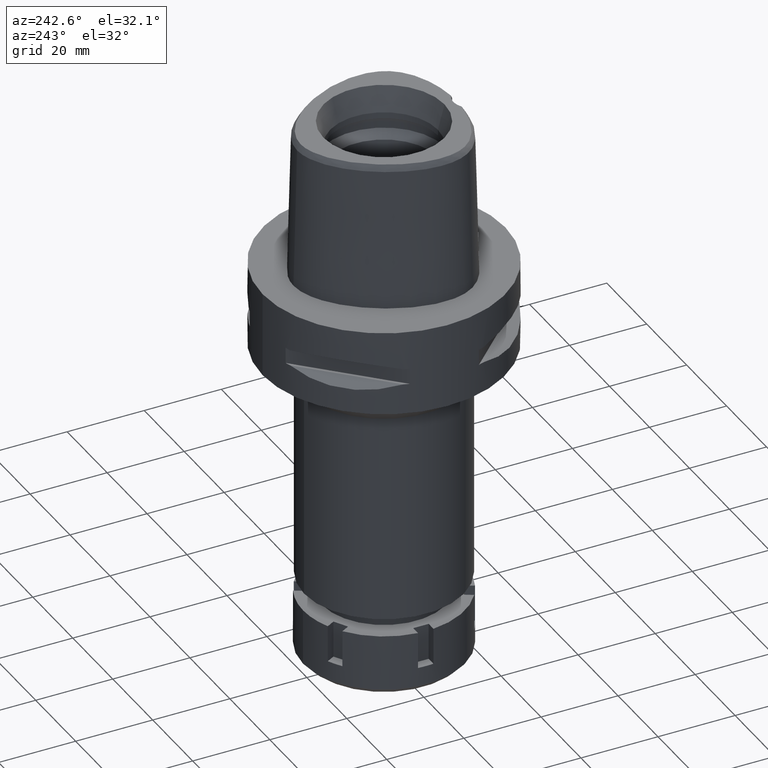
[diagram: clean part render]
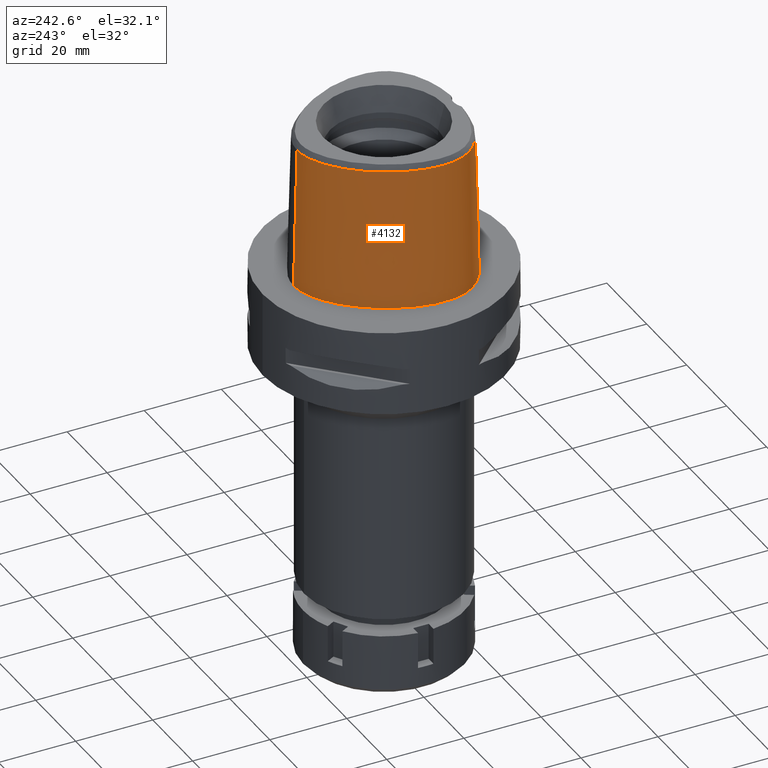
[diagram: same view with one face highlighted and labeled with its STEP entity id]
A machine part, auxiliary view. The second image highlights one B-rep face of the part: STEP entity #4132.
In plain terms, the highlighted face is a freeform B-spline surface patch.
Its self-contained STEP definition (entity closure, byte-faithful):
#2 = CARTESIAN_POINT ( 'NONE',  ( -21.13154902109999966, -6.714587096932000065, 37.25231278910999322 ) ) ;
#7 = CARTESIAN_POINT ( 'NONE',  ( -3.736722311398999796, -19.67781602443999844, 31.80000000000000071 ) ) ;
#26 = CARTESIAN_POINT ( 'NONE',  ( -10.91263714565000065, -18.01320819216000402, 37.25231278910999322 ) ) ;
#32 = CARTESIAN_POINT ( 'NONE',  ( -1.222079501498656962, -20.16967619644332643, 19.36182732690445363 ) ) ;
#38 = CARTESIAN_POINT ( 'NONE',  ( -2.376843896517638388, 22.39422508473669637, 36.52186244847991503 ) ) ;
#65 = CARTESIAN_POINT ( 'NONE',  ( -2.621021505588482015, -20.11233874864636562, 18.58822781674864899 ) ) ;
#87 = CARTESIAN_POINT ( 'NONE',  ( -2.113823673093606637, -20.67500000048518061, -1.936139383583793117E-08 ) ) ;
#97 = CARTESIAN_POINT ( 'NONE',  ( 2.041042029990999821E-08, -19.88004246002000031, 31.80000004972000127 ) ) ;
#138 = CARTESIAN_POINT ( 'NONE',  ( -3.736722311398999796, -19.67781602443999844, 31.80000000000000071 ) ) ;
#173 = CARTESIAN_POINT ( 'NONE',  ( 0.6840430852729000311, -20.68668154552000260, -0.7304375056686999157 ) ) ;
#205 = CARTESIAN_POINT ( 'NONE',  ( 0.6850314194014999192, 22.83959063152000013, 24.59139602417999981 ) ) ;
#213 = CARTESIAN_POINT ( 'NONE',  ( -4.049848995936174312, -20.05861656952050609, 15.25314035234744559 ) ) ;
#234 = VERTEX_POINT ( 'NONE', #941 ) ;
#238 = CARTESIAN_POINT ( 'NONE',  ( -10.14358084831000006, 18.45723428719999859, 37.25231278910999322 ) ) ;
#252 = CARTESIAN_POINT ( 'NONE',  ( -4.027530768679776330, -20.06783249596159635, 14.99855479655600732 ) ) ;
#267 = B_SPLINE_SURFACE_WITH_KNOTS ( 'NONE', 3, 3, ( 
 ( #738, #5446, #205, #764 ),
 ( #1217, #301, #5027, #1618 ),
 ( #4976, #3338, #2910, #4621 ),
 ( #4153, #1951, #4528, #4202 ),
 ( #2071, #3793, #672, #5478 ),
 ( #1646, #5392, #4122, #271 ),
 ( #1135, #2936, #645, #238 ),
 ( #2852, #2015, #2965, #4338 ),
 ( #2097, #2599, #3017, #407 ),
 ( #4679, #1772, #2519, #5522 ),
 ( #5153, #3839, #3872, #2178 ),
 ( #3447, #5131, #1723, #3816 ),
 ( #4315, #792, #5499, #2 ),
 ( #1301, #840, #2149, #443 ),
 ( #3045, #1698, #3505, #3894 ),
 ( #1748, #1248, #2572, #2993 ),
 ( #5553, #3473, #3421, #465 ),
 ( #4723, #864, #1670, #1324 ),
 ( #3387, #820, #3917, #5108 ),
 ( #1278, #4752, #4700, #898 ),
 ( #4259, #5077, #4283, #26 ),
 ( #2628, #2202, #5186, #1355 ),
 ( #4235, #2547, #382, #4647 ),
 ( #357, #2121, #947, #2285 ),
 ( #173, #3534, #2226, #1805 ) ),
 .UNSPECIFIED., .F., .F., .F.,
 ( 4, 1, 1, 1, 1, 1, 1, 1, 1, 1, 1, 1, 1, 1, 1, 1, 1, 1, 1, 1, 1, 1, 4 ),
 ( 4, 4 ),
 ( -0.01173777939052000029, 0.0000000000000000000, 0.04166666666751999565, 0.08333333333413001087, 0.1250000000007999990, 0.1666666666674000152, 0.2500000000006000200, 0.3333333333337999971, 0.4166666666671000052, 0.5000000000002999823, 0.5416666666670000296, 0.5833333333335000148, 0.6250000000001999512, 0.6458333333335000148, 0.6666666666667999674, 0.6875000000001000311, 0.7083333333333999837, 0.7500000000000000000, 0.7916666666667000474, 0.8333333333333000637, 0.9166666666666000163, 1.000000000000000000, 1.008985696609000060 ),
 ( 5.972674056720000678E-09, 0.9999996953936000077 ),
 .UNSPECIFIED. ) ;
#271 = CARTESIAN_POINT ( 'NONE',  ( -7.099337850620999646, 20.50831403385999607, 37.25231278910999322 ) ) ;
#282 = CARTESIAN_POINT ( 'NONE',  ( -3.089131642920630583, -20.21685897408095656, 12.88004451868196654 ) ) ;
#301 = CARTESIAN_POINT ( 'NONE',  ( 0.4696382076131000449, 23.16972812732999643, 11.93047925926000197 ) ) ;
#309 = CARTESIAN_POINT ( 'NONE',  ( -4.044848056823780347, -20.04744994059091923, 15.72117637690715064 ) ) ;
#341 = CARTESIAN_POINT ( 'NONE',  ( -2.875757950340810609, -20.24102512592879677, 12.64823125461289521 ) ) ;
#357 = CARTESIAN_POINT ( 'NONE',  ( 0.4560943669547999901, -20.69106768045000067, -0.7304375056686999157 ) ) ;
#382 = CARTESIAN_POINT ( 'NONE',  ( -1.853278699713999833, -20.08023939994999907, 24.59139602417999981 ) ) ;
#392 = CARTESIAN_POINT ( 'NONE',  ( -13.70645028111170305, 15.04851272300122567, 36.52186244847991503 ) ) ;
#406 = EDGE_LOOP ( 'NONE', ( #1982, #4069, #1013, #3016, #3652, #2192, #5477, #4634 ) ) ;
#407 = CARTESIAN_POINT ( 'NONE',  ( -17.25769868493999937, 9.963736632712999253, 37.25231278910999322 ) ) ;
#424 = CARTESIAN_POINT ( 'NONE',  ( -7.300578999875143360, -19.07170748891650547, 36.52186244847991503 ) ) ;
#443 = CARTESIAN_POINT ( 'NONE',  ( -20.65947771417999945, -8.729764421392999907, 37.25231278910999322 ) ) ;
#455 = CARTESIAN_POINT ( 'NONE',  ( -14.22011356156078854, -16.41829364185893070, 36.52186244847991503 ) ) ;
#465 = CARTESIAN_POINT ( 'NONE',  ( -18.89485296927999869, -12.27684387216999973, 37.25231278910999322 ) ) ;
#469 = CARTESIAN_POINT ( 'NONE',  ( -0.2473412322782437278, -20.18628283969000492, 19.54999999999999716 ) ) ;
#494 = CARTESIAN_POINT ( 'NONE',  ( -2.857836109606429087, -20.09902107152586126, 18.36973246307253049 ) ) ;
#529 = CARTESIAN_POINT ( 'NONE',  ( -1.300728010709000004E-12, -20.38876923348000147, 11.44999999999999929 ) ) ;
#574 = CARTESIAN_POINT ( 'NONE',  ( -22.24453907903185268, -4.100468749996733386, -1.936139383583793117E-08 ) ) ;
#645 = CARTESIAN_POINT ( 'NONE',  ( -10.34823247731999984, 18.70095510951999884, 24.59139602417999981 ) ) ;
#653 = CARTESIAN_POINT ( 'NONE',  ( -3.740129524201757150, -20.04822853724978060, 17.05370687140962005 ) ) ;
#660 = LINE ( 'NONE', #2366, #2949 ) ;
#664 = CARTESIAN_POINT ( 'NONE',  ( 6.820000355845149511E-09, -19.98212988583490457, 27.71666688228263098 ) ) ;
#672 = CARTESIAN_POINT ( 'NONE',  ( -4.868968478290000235, 21.95285551758000153, 24.59139602417999981 ) ) ;
#682 = CARTESIAN_POINT ( 'NONE',  ( -4.001055636210810285, -20.04208398455349993, 16.14154222857778009 ) ) ;
#721 = CARTESIAN_POINT ( 'NONE',  ( -3.623054736480678883, -20.05423874947347684, 17.31100359227538732 ) ) ;
#738 = CARTESIAN_POINT ( 'NONE',  ( 0.7234356448575000043, 23.47140592234999801, -0.7304375056686999157 ) ) ;
#749 = CARTESIAN_POINT ( 'NONE',  ( -3.215358272887883562, -20.20174660046962245, 13.03391498473813748 ) ) ;
#764 = CARTESIAN_POINT ( 'NONE',  ( 0.6658293066735000432, 22.52368298609999897, 37.25231278910999322 ) ) ;
#774 = CARTESIAN_POINT ( 'NONE',  ( -2.904838724128467664, -20.23782704190360704, 12.67778573503113471 ) ) ;
#792 = CARTESIAN_POINT ( 'NONE',  ( -21.76083719822999996, -6.805026055553000219, 11.93047925926000197 ) ) ;
#815 = LINE ( 'NONE', #4276, #5357 ) ;
#820 = CARTESIAN_POINT ( 'NONE',  ( -16.77374387901999953, -15.44292479314999866, 11.93047925926000197 ) ) ;
#824 = CARTESIAN_POINT ( 'NONE',  ( -2.187955111052514390, -20.13397228737158429, 18.90818030783675852 ) ) ;
#838 = EDGE_CURVE ( 'NONE', #4763, #1926, #1548, .T. ) ;
#840 = CARTESIAN_POINT ( 'NONE',  ( -21.26836749701999807, -8.910752269759999677, 11.93047925926000197 ) ) ;
#853 = B_SPLINE_CURVE_WITH_KNOTS ( 'NONE', 3,
 ( #3578, #1400, #424, #3519, #455, #4710, #1367, #1760, #5117, #4658, #4327, #5200, #3849, #5537, #880, #3032, #392, #4245, #4690, #2190, #38, #5565, #3486 ),
 .UNSPECIFIED., .F., .F.,
 ( 4, 1, 1, 1, 1, 1, 1, 1, 1, 1, 1, 1, 1, 1, 1, 1, 1, 1, 1, 1, 4 ),
 ( 0.0000000000000000000, 0.03580973941716368569, 0.1234633994701200693, 0.1672902294965457060, 0.2111170595230765779, 0.2549438895495022006, 0.2768573045627149565, 0.2987707195759278234, 0.3206841345891406347, 0.3425975496023535016, 0.3864243796288842070, 0.4302512096552046361, 0.4740780396817355080, 0.5617316997345866980, 0.6493853597875431927, 0.7370390198403943272, 0.8246926798932455727, 0.8685195099196713064, 0.9123463399461704260, 0.9561731699726067069, 1.000000000000000000 ),
 .UNSPECIFIED. ) ;
#861 = CARTESIAN_POINT ( 'NONE',  ( -5.098437017463878007, 22.52602539107704516, -1.936139383583793117E-08 ) ) ;
#864 = CARTESIAN_POINT ( 'NONE',  ( -18.35112160044999996, -13.96357041449000036, 11.93047925926000197 ) ) ;
#875 = CARTESIAN_POINT ( 'NONE',  ( -2.503154198992878499, -19.81241979315927182, 31.80000012753022531 ) ) ;
#880 = CARTESIAN_POINT ( 'NONE',  ( -19.88562090098679747, 4.345879983791757439, 36.52186244847991503 ) ) ;
#898 = CARTESIAN_POINT ( 'NONE',  ( -14.21104807742999832, -16.40237719817999817, 37.25231278910999322 ) ) ;
#904 = CARTESIAN_POINT ( 'NONE',  ( 0.0000000000000000000, -20.18628283968999781, 19.55000000000000071 ) ) ;
#928 = CARTESIAN_POINT ( 'NONE',  ( -2.781497320434850540, -20.10345565782016308, 18.44409576488488867 ) ) ;
#941 = CARTESIAN_POINT ( 'NONE',  ( -1.605369804321000336E-11, 22.56201468012000078, 36.52186680743999858 ) ) ;
#947 = CARTESIAN_POINT ( 'NONE',  ( 0.4479792512575000440, -20.05810167422999868, 24.59139602417999981 ) ) ;
#979 = CARTESIAN_POINT ( 'NONE',  ( -21.55524826055441778, -8.996025390764080143, -1.936139383583793117E-08 ) ) ;
#1012 = CARTESIAN_POINT ( 'NONE',  ( -22.05732874370039198, -6.847636718819056334, -1.936139383583793117E-08 ) ) ;
#1013 = ORIENTED_EDGE ( 'NONE', *, *, #838, .F. ) ;
#1090 = B_SPLINE_CURVE_WITH_KNOTS ( 'NONE', 3,
 ( #1282, #4343, #5192, #7 ),
 .UNSPECIFIED., .F., .F.,
 ( 4, 4 ),
 ( 0.0000000000000000000, 1.000000000000000000 ),
 .UNSPECIFIED. ) ;
#1113 = CARTESIAN_POINT ( 'NONE',  ( -3.294464282139042854, -20.19175818983875814, 13.14063372506621796 ) ) ;
#1135 = CARTESIAN_POINT ( 'NONE',  ( -10.75753573533999941, 19.18839675417000024, -0.7304375056686999157 ) ) ;
#1143 = CARTESIAN_POINT ( 'NONE',  ( -0.5047993661875627147, -20.38876923348000503, 11.44999999999999929 ) ) ;
#1176 = CARTESIAN_POINT ( 'NONE',  ( -4.038031914720374260, -20.04584209172325160, 15.81781984753357762 ) ) ;
#1202 = CARTESIAN_POINT ( 'NONE',  ( -3.698122373792616546, -20.13343971463959647, 13.84482020408002789 ) ) ;
#1217 = CARTESIAN_POINT ( 'NONE',  ( 0.4823619555731999964, 23.48603817779999758, -0.7304375056686999157 ) ) ;
#1227 = CARTESIAN_POINT ( 'NONE',  ( -1.678454493248099144, -20.33967188086277744, 11.81405957882488345 ) ) ;
#1248 = CARTESIAN_POINT ( 'NONE',  ( -20.09084480770000170, -11.59945465740000081, 11.93047925926000197 ) ) ;
#1257 = CARTESIAN_POINT ( 'NONE',  ( -3.736722311398999796, -19.67781602443999844, 31.80000000000000071 ) ) ;
#1278 = CARTESIAN_POINT ( 'NONE',  ( -14.68244496903000140, -17.23001772651000252, -0.7304375056686999157 ) ) ;
#1282 = CARTESIAN_POINT ( 'NONE',  ( -3.637738201363999835, -19.56971413236999879, 36.52186244848000030 ) ) ;
#1301 = CARTESIAN_POINT ( 'NONE',  ( -21.57281238843999915, -9.001246193943998719, -0.7304375056686999157 ) ) ;
#1324 = CARTESIAN_POINT ( 'NONE',  ( -17.88993667591999781, -13.52675031845000042, 37.25231278910999322 ) ) ;
#1355 = CARTESIAN_POINT ( 'NONE',  ( -6.175998626873999697, -19.37631808655999777, 37.25231278910999322 ) ) ;
#1360 = CARTESIAN_POINT ( 'NONE',  ( -1.025211814385354803, -20.17465818941732891, 19.42048404905330372 ) ) ;
#1367 = CARTESIAN_POINT ( 'NONE',  ( -17.90324032096656026, -13.53935111955590287, 36.52186244847991503 ) ) ;
#1386 = CARTESIAN_POINT ( 'NONE',  ( -3.258446753581197175, -20.07522384658359016, 17.91983021284886846 ) ) ;
#1400 = CARTESIAN_POINT ( 'NONE',  ( -4.467522189394514065, -19.48130287050325649, 36.52186244847991503 ) ) ;
#1406 = CARTESIAN_POINT ( 'NONE',  ( -6.341471019297461709, -20.29812500048721091, -1.936139383583793117E-08 ) ) ;
#1491 = DIRECTION ( 'NONE',  ( 1.954414784638959457E-12, 0.02499051290953949525, -0.9996876883629797206 ) ) ;
#1543 = CARTESIAN_POINT ( 'NONE',  ( -3.377353639916687911, -20.18061854612784245, 13.26476903757044568 ) ) ;
#1548 = B_SPLINE_CURVE_WITH_KNOTS ( 'NONE', 3,
 ( #4522, #664, #3705, #3647 ),
 .UNSPECIFIED., .F., .F.,
 ( 4, 4 ),
 ( 0.0000000000000000000, 1.000000000000000000 ),
 .UNSPECIFIED. ) ;
#1561 = VERTEX_POINT ( 'NONE', #138 ) ;
#1571 = CARTESIAN_POINT ( 'NONE',  ( -2.421503357379948262, -20.28648737493531939, 12.24279215500327389 ) ) ;
#1598 = CARTESIAN_POINT ( 'NONE',  ( -1.559921522258002735, -20.34641501698342836, 11.76246137009469805 ) ) ;
#1618 = CARTESIAN_POINT ( 'NONE',  ( 0.4441907116927999999, 22.53710802640000210, 37.25231278910999322 ) ) ;
#1631 = CARTESIAN_POINT ( 'NONE',  ( -3.755562140673627702, -20.12374194796139193, 13.98397501487714223 ) ) ;
#1646 = CARTESIAN_POINT ( 'NONE',  ( -7.580410837954000947, 21.33037925914000255, -0.7304375056686999157 ) ) ;
#1656 = CARTESIAN_POINT ( 'NONE',  ( -3.408875187705913135, -20.17633333109255744, 13.31312751153962637 ) ) ;
#1670 = CARTESIAN_POINT ( 'NONE',  ( -18.12052913818000022, -13.74516036646999950, 24.59139602417999981 ) ) ;
#1698 = CARTESIAN_POINT ( 'NONE',  ( -20.65879055685999788, -10.48283622748999910, 11.93047925926000197 ) ) ;
#1721 = CARTESIAN_POINT ( 'NONE',  ( 5.534747782599000141E-11, 23.47499999999000053, 1.254922092168000080E-13 ) ) ;
#1723 = CARTESIAN_POINT ( 'NONE',  ( -21.62788416859000407, -4.104079497494000250, 24.59139602417999981 ) ) ;
#1729 = CARTESIAN_POINT ( 'NONE',  ( -1.533377486156251024, -20.16026360294686981, 19.24851053760685105 ) ) ;
#1744 = CARTESIAN_POINT ( 'NONE',  ( -7.571159434596632209, 21.31457031291904158, -1.936139383583793117E-08 ) ) ;
#1748 = CARTESIAN_POINT ( 'NONE',  ( -20.36546124135999847, -11.75800452989999911, -0.7304375056686999157 ) ) ;
#1760 = CARTESIAN_POINT ( 'NONE',  ( -18.90964971338283007, -12.28759719904299530, 36.52186244847991503 ) ) ;
#1772 = CARTESIAN_POINT ( 'NONE',  ( -20.46725051708000009, 4.555493675633999651, 11.93047925926000197 ) ) ;
#1779 = CARTESIAN_POINT ( 'NONE',  ( -1.435263460293925819, -20.16346600381253040, 19.28743623777244309 ) ) ;
#1794 = CARTESIAN_POINT ( 'NONE',  ( 0.0000000000000000000, -20.18628283968999781, 19.55000000000000071 ) ) ;
#1805 = CARTESIAN_POINT ( 'NONE',  ( 0.6657744364777999913, -19.73734279609000097, 37.25231278910999322 ) ) ;
#1810 = CARTESIAN_POINT ( 'NONE',  ( -2.841055161952164010, -20.10000556631501567, 18.38634273630945870 ) ) ;
#1926 = VERTEX_POINT ( 'NONE', #1794 ) ;
#1951 = CARTESIAN_POINT ( 'NONE',  ( -2.503210920796000050, 22.99958946613999800, 11.93047925926000197 ) ) ;
#1963 = CARTESIAN_POINT ( 'NONE',  ( -3.830499027160743086, -20.11062698623123524, 14.18153512545000794 ) ) ;
#1982 = ORIENTED_EDGE ( 'NONE', *, *, #4328, .F. ) ;
#1997 = CARTESIAN_POINT ( 'NONE',  ( -3.686560471764692259, -20.05088322548417068, 17.17709135335520898 ) ) ;
#2006 = EDGE_CURVE ( 'NONE', #2045, #234, #853, .T. ) ;
#2015 = CARTESIAN_POINT ( 'NONE',  ( -14.17879764695000055, 15.44741200484000032, 11.93047925926000197 ) ) ;
#2045 = VERTEX_POINT ( 'NONE', #3431 ) ;
#2050 = CARTESIAN_POINT ( 'NONE',  ( -3.862607746693165200, -20.10460055501438248, 14.28038032243066624 ) ) ;
#2071 = CARTESIAN_POINT ( 'NONE',  ( -5.105252914480999493, 22.54305023834000110, -0.7304375056686999157 ) ) ;
#2083 = CARTESIAN_POINT ( 'NONE',  ( -2.870809693610187452, -20.24156730632852330, 12.64324605246986089 ) ) ;
#2097 = CARTESIAN_POINT ( 'NONE',  ( -18.08416037938999921, 10.44089486994999838, -0.7304375056686999157 ) ) ;
#2103 = CARTESIAN_POINT ( 'NONE',  ( -1.944872162933173332, -20.14473830020670775, 19.05307826098763613 ) ) ;
#2121 = CARTESIAN_POINT ( 'NONE',  ( 0.4520368091062000326, -20.37458467733999967, 11.93047925926000197 ) ) ;
#2149 = CARTESIAN_POINT ( 'NONE',  ( -20.96392260560000054, -8.820258345577000725, 24.59139602417999981 ) ) ;
#2157 = CARTESIAN_POINT ( 'NONE',  ( -0.8941136475798193706, -20.17742596329177118, 19.45229334933474163 ) ) ;
#2178 = CARTESIAN_POINT ( 'NONE',  ( -21.05621925524999938, -0.4440251336689999828, 37.25231278910999322 ) ) ;
#2190 = CARTESIAN_POINT ( 'NONE',  ( -4.757642277159060740, 21.67478330407760723, 36.52186244847991503 ) ) ;
#2192 = ORIENTED_EDGE ( 'NONE', *, *, #2006, .T. ) ;
#2202 = CARTESIAN_POINT ( 'NONE',  ( -6.288476592908000207, -20.00290579243000266, 11.93047925926000197 ) ) ;
#2222 = CARTESIAN_POINT ( 'NONE',  ( -18.06826688568742867, 10.43171875024612305, -1.936139383583793117E-08 ) ) ;
#2226 = CARTESIAN_POINT ( 'NONE',  ( 0.6718639860762000149, -20.05378904589999678, 24.59139602417999981 ) ) ;
#2232 = CARTESIAN_POINT ( 'NONE',  ( -2.823299992937056135, -20.10104229143709276, 18.40378355436299529 ) ) ;
#2255 = CARTESIAN_POINT ( 'NONE',  ( -11.23259756743898841, -18.89324218796141963, -1.936139383583793117E-08 ) ) ;
#2283 = CARTESIAN_POINT ( 'NONE',  ( -20.93173252255640193, -10.60431640645195017, -1.936139383583793117E-08 ) ) ;
#2285 = CARTESIAN_POINT ( 'NONE',  ( 0.4439216934087999999, -19.74161867111999769, 37.25231278910999322 ) ) ;
#2308 = CARTESIAN_POINT ( 'NONE',  ( -19.64947365902738596, -12.82525390653195352, -1.936139383583793117E-08 ) ) ;
#2361 = B_SPLINE_CURVE_WITH_KNOTS ( 'NONE', 3,
 ( #2609, #4323, #875, #1257 ),
 .UNSPECIFIED., .F., .F.,
 ( 4, 4 ),
 ( 0.0000000000000000000, 1.000000000000000000 ),
 .UNSPECIFIED. ) ;
#2366 = CARTESIAN_POINT ( 'NONE',  ( -1.605369804321000336E-11, 22.56201468012000078, 36.52186680743999858 ) ) ;
#2384 = CARTESIAN_POINT ( 'NONE',  ( -3.925407708630975545, -20.04099055260221363, 16.53138977182821634 ) ) ;
#2413 = CARTESIAN_POINT ( 'NONE',  ( -4.019649019913003940, -20.04316019033985086, 16.01163126943011861 ) ) ;
#2446 = CARTESIAN_POINT ( 'NONE',  ( -3.649474620159721017, -20.05281468735726591, 17.25706831817002396 ) ) ;
#2470 = CARTESIAN_POINT ( 'NONE',  ( -3.704467467890589560, -20.04996865237293591, 17.13733399074684272 ) ) ;
#2495 = CARTESIAN_POINT ( 'NONE',  ( -2.945118222696918142, -20.23335776654030127, 12.71958560101020730 ) ) ;
#2519 = CARTESIAN_POINT ( 'NONE',  ( -20.16779748912999892, 4.447573698754999860, 24.59139602417999981 ) ) ;
#2526 = CARTESIAN_POINT ( 'NONE',  ( -1.320565687276267441, -20.16697761691573376, 19.32976498245970376 ) ) ;
#2547 = CARTESIAN_POINT ( 'NONE',  ( -1.870070495857000026, -20.39691399736000221, 11.93047925926000197 ) ) ;
#2552 = CARTESIAN_POINT ( 'NONE',  ( -2.218923952810184286, -20.13252298611807234, 18.88809933005989095 ) ) ;
#2572 = CARTESIAN_POINT ( 'NONE',  ( -19.81622837404000137, -11.44090478490000073, 24.59139602417999981 ) ) ;
#2599 = CARTESIAN_POINT ( 'NONE',  ( -17.80867314790999956, 10.28184212420000065, 11.93047925926000197 ) ) ;
#2609 = CARTESIAN_POINT ( 'NONE',  ( 2.041042029990999821E-08, -19.88004246002000031, 31.80000004972000127 ) ) ;
#2628 = CARTESIAN_POINT ( 'NONE',  ( -6.344715575923999928, -20.31619964537000200, -0.7304375056686999157 ) ) ;
#2656 = CARTESIAN_POINT ( 'NONE',  ( -2.467128207655710614, -20.12044499745019266, 18.71456023906526056 ) ) ;
#2708 = CARTESIAN_POINT ( 'NONE',  ( -20.34961798599187688, -11.74885742211361617, -1.936139383583793117E-08 ) ) ;
#2768 = EDGE_CURVE ( 'NONE', #4683, #4919, #5450, .T. ) ;
#2834 = CARTESIAN_POINT ( 'NONE',  ( -1.572984596531428858, -20.34569619827913201, 11.76794029727377122 ) ) ;
#2852 = CARTESIAN_POINT ( 'NONE',  ( -14.42198651668000053, 15.65278599970000251, -0.7304375056686999157 ) ) ;
#2863 = CARTESIAN_POINT ( 'NONE',  ( -1.300728010709000004E-12, -20.38876923348000147, 11.44999999999999929 ) ) ;
#2895 = EDGE_CURVE ( 'NONE', #234, #4683, #660, .T. ) ;
#2896 = CARTESIAN_POINT ( 'NONE',  ( -3.388781880796850388, -20.17907268769689111, 13.28211842279059951 ) ) ;
#2910 = CARTESIAN_POINT ( 'NONE',  ( -0.5821289319889000335, 22.88453105387999997, 24.59139602417999981 ) ) ;
#2920 = CARTESIAN_POINT ( 'NONE',  ( -3.438474044887640968, -20.17226853620277538, 13.35950353148250436 ) ) ;
#2936 = CARTESIAN_POINT ( 'NONE',  ( -10.55288410633000140, 18.94467593184999998, 11.93047925926000197 ) ) ;
#2946 = CARTESIAN_POINT ( 'NONE',  ( -3.538328569005044333, -20.05892019842456264, 17.47427695038981810 ) ) ;
#2949 = VECTOR ( 'NONE', #1491, 1000.000000000000227 ) ;
#2965 = CARTESIAN_POINT ( 'NONE',  ( -13.93560877720999969, 15.24203800997000080, 24.59139602417999981 ) ) ;
#2971 = CARTESIAN_POINT ( 'NONE',  ( -2.141634863663407717, -20.13611892945429105, 18.93776449056396416 ) ) ;
#2993 = CARTESIAN_POINT ( 'NONE',  ( -19.54161194038000104, -11.28235491240999977, 37.25231278910999322 ) ) ;
#3015 = CARTESIAN_POINT ( 'NONE',  ( -0.8548392423348609714, 23.47500000048928825, -1.936139383583792786E-08 ) ) ;
#3016 = ORIENTED_EDGE ( 'NONE', *, *, #3785, .T. ) ;
#3017 = CARTESIAN_POINT ( 'NONE',  ( -17.53318591641999902, 10.12278937846000026, 24.59139602417999981 ) ) ;
#3032 = CARTESIAN_POINT ( 'NONE',  ( -17.27359245833809354, 9.972912913899113718, 36.52186244847991503 ) ) ;
#3045 = CARTESIAN_POINT ( 'NONE',  ( -20.94844325468000079, -10.61175396821999861, -0.7304375056686999157 ) ) ;
#3108 = CARTESIAN_POINT ( 'NONE',  ( -2.696415149899702879, -20.10825975497923679, 18.52316981035092169 ) ) ;
#3144 = CARTESIAN_POINT ( 'NONE',  ( -1.042620445671000137E-11, -20.67499999999999716, 1.284898113832999718E-13 ) ) ;
#3265 = CARTESIAN_POINT ( 'NONE',  ( -1.638635025836901349, -20.34200884320553371, 11.79610711465294237 ) ) ;
#3270 = EDGE_CURVE ( 'NONE', #2045, #1561, #1090, .T. ) ;
#3289 = CARTESIAN_POINT ( 'NONE',  ( -1.554881956804979204, -20.34669101430225524, 11.76035872671680060 ) ) ;
#3318 = CARTESIAN_POINT ( 'NONE',  ( -1.592612062464957123, -20.34460894491118310, 11.77623291199202349 ) ) ;
#3338 = CARTESIAN_POINT ( 'NONE',  ( -0.5985508222284999791, 23.20171284941000067, 11.93047925926000197 ) ) ;
#3348 = CARTESIAN_POINT ( 'NONE',  ( -3.952964639637182476, -20.08622609015915472, 14.60890045227376532 ) ) ;
#3373 = CARTESIAN_POINT ( 'NONE',  ( -1.812541018710777552, -20.33144879143533501, 11.87771303032907255 ) ) ;
#3387 = CARTESIAN_POINT ( 'NONE',  ( -16.97022730840000193, -15.69280482770999896, -0.7304375056686999157 ) ) ;
#3394 = EDGE_CURVE ( 'NONE', #1926, #5230, #4371, .T. ) ;
#3421 = CARTESIAN_POINT ( 'NONE',  ( -19.15132536042999689, -12.46323159617000087, 24.59139602417999981 ) ) ;
#3431 = CARTESIAN_POINT ( 'NONE',  ( -3.637738201363999835, -19.56971413236999879, 36.52186244848000030 ) ) ;
#3447 = CARTESIAN_POINT ( 'NONE',  ( -22.26285556102000385, -4.100361500073999466, -0.7304375056686999157 ) ) ;
#3452 = CARTESIAN_POINT ( 'NONE',  ( -1.656252726929893671, -20.15609978928699064, 19.19765142506413014 ) ) ;
#3473 = CARTESIAN_POINT ( 'NONE',  ( -19.40779775158999954, -12.64961932016999846, 11.93047925926000197 ) ) ;
#3486 = CARTESIAN_POINT ( 'NONE',  ( -1.605369804321000336E-11, 22.56201468012000078, 36.52186680743999858 ) ) ;
#3505 = CARTESIAN_POINT ( 'NONE',  ( -20.36913785902999763, -10.35391848676000137, 24.59139602417999981 ) ) ;
#3512 = CARTESIAN_POINT ( 'NONE',  ( -1.543048130381289074, -20.15993798682084659, 19.24453660913574282 ) ) ;
#3519 = CARTESIAN_POINT ( 'NONE',  ( -10.91891098964689100, -18.03046406390404854, 36.52186244847991503 ) ) ;
#3534 = CARTESIAN_POINT ( 'NONE',  ( 0.6779535356746000385, -20.37023529570999969, 11.93047925926000197 ) ) ;
#3540 = CARTESIAN_POINT ( 'NONE',  ( -2.360389010911050800, -20.12578017861218882, 18.79373387522195316 ) ) ;
#3558 = CARTESIAN_POINT ( 'NONE',  ( -1.042620445671000137E-11, -20.67499999999999716, 1.284898113832999718E-13 ) ) ;
#3578 = CARTESIAN_POINT ( 'NONE',  ( -3.637738201363999835, -19.56971413236999879, 36.52186244848000030 ) ) ;
#3618 = CARTESIAN_POINT ( 'NONE',  ( -14.67337964443183296, -17.21410156292554561, -1.936139383583793117E-08 ) ) ;
#3647 = CARTESIAN_POINT ( 'NONE',  ( 0.0000000000000000000, -20.18628283968999781, 19.55000000000000071 ) ) ;
#3652 = ORIENTED_EDGE ( 'NONE', *, *, #3270, .F. ) ;
#3690 = CARTESIAN_POINT ( 'NONE',  ( -3.748882549353983240, -20.12487725615872236, 13.96753193210200727 ) ) ;
#3705 = CARTESIAN_POINT ( 'NONE',  ( 6.839970278757620539E-09, -20.08420636276298055, 23.63333344114143486 ) ) ;
#3719 = CARTESIAN_POINT ( 'NONE',  ( -3.553766164806683392, -20.15576042543187540, 13.55638603583821222 ) ) ;
#3744 = CARTESIAN_POINT ( 'NONE',  ( -1.758544761671194445, -20.33485355119340809, 11.85123508312359064 ) ) ;
#3770 = CARTESIAN_POINT ( 'NONE',  ( -3.788010122578853611, -20.11815763408451474, 14.06624340821270103 ) ) ;
#3785 = EDGE_CURVE ( 'NONE', #4763, #1561, #2361, .T. ) ;
#3793 = CARTESIAN_POINT ( 'NONE',  ( -4.987110696386000797, 22.24795287795999954, 11.93047925926000197 ) ) ;
#3805 = CARTESIAN_POINT ( 'NONE',  ( -2.647727988100973207, -20.26593689667726750, 12.42012271607942786 ) ) ;
#3816 = CARTESIAN_POINT ( 'NONE',  ( -21.31039847237000018, -4.105938496203999755, 37.25231278910999322 ) ) ;
#3822 = CARTESIAN_POINT ( 'NONE',  ( -2.004675599390202567, -20.14220382833396883, 19.01976680093374839 ) ) ;
#3839 = CARTESIAN_POINT ( 'NONE',  ( -21.68301109284999839, -0.3332743892142999709, 11.93047925926000197 ) ) ;
#3849 = CARTESIAN_POINT ( 'NONE',  ( -21.32871527669426825, -4.105831244393869817, 36.52186244847991503 ) ) ;
#3872 = CARTESIAN_POINT ( 'NONE',  ( -21.36961517405000066, -0.3886497614416000168, 24.59139602417999981 ) ) ;
#3894 = CARTESIAN_POINT ( 'NONE',  ( -20.07948516121000182, -10.22500074603000009, 37.25231278910999322 ) ) ;
#3917 = CARTESIAN_POINT ( 'NONE',  ( -16.57726044965000156, -15.19304475859000014, 24.59139602417999981 ) ) ;
#3923 = CARTESIAN_POINT ( 'NONE',  ( -0.5036866637249096668, -20.18406862059043760, 19.52728785669985001 ) ) ;
#3951 = CARTESIAN_POINT ( 'NONE',  ( -3.081149392577405166, -20.08583124627778105, 18.14629112890300533 ) ) ;
#3956 = CARTESIAN_POINT ( 'NONE',  ( 5.534747782599000141E-11, 23.47499999999000053, 1.254922092168000080E-13 ) ) ;
#3972 = CARTESIAN_POINT ( 'NONE',  ( -10.74572891090238436, 19.17433593787038859, -1.936139383583793117E-08 ) ) ;
#4024 = CARTESIAN_POINT ( 'NONE',  ( -16.95889172623624930, -15.67838867225212418, -1.936139383583793117E-08 ) ) ;
#4069 = ORIENTED_EDGE ( 'NONE', *, *, #3394, .F. ) ;
#4100 = CARTESIAN_POINT ( 'NONE',  ( -4.050018014422889223, -20.05167593067619691, 15.52805627100407371 ) ) ;
#4122 = CARTESIAN_POINT ( 'NONE',  ( -7.259695513064999162, 20.78233577562000178, 24.59139602417999981 ) ) ;
#4132 = ADVANCED_FACE ( 'NONE', ( #4951 ), #267, .T. ) ;
#4133 = CARTESIAN_POINT ( 'NONE',  ( -3.466483550186857610, -20.16833646136318947, 13.40542637771266676 ) ) ;
#4153 = CARTESIAN_POINT ( 'NONE',  ( -2.568271204884999825, 23.31126237963000136, -0.7304375056686999157 ) ) ;
#4162 = CARTESIAN_POINT ( 'NONE',  ( -3.732557508995177908, -20.04859144260194981, 17.07180291399460259 ) ) ;
#4188 = CARTESIAN_POINT ( 'NONE',  ( -3.848403410397717828, -20.04310851184499498, 16.79149714040717001 ) ) ;
#4202 = CARTESIAN_POINT ( 'NONE',  ( -2.373090352618000054, 22.37624363916000192, 37.25231278910999322 ) ) ;
#4214 = CARTESIAN_POINT ( 'NONE',  ( -2.887412005234532675, -20.23974548682601693, 12.66003157092501930 ) ) ;
#4235 = CARTESIAN_POINT ( 'NONE',  ( -1.886862292001000085, -20.71358859476999825, -0.7304375056686999157 ) ) ;
#4239 = CARTESIAN_POINT ( 'NONE',  ( -1.768917262173088867, -20.15190475906380030, 19.14568281053183796 ) ) ;
#4245 = CARTESIAN_POINT ( 'NONE',  ( -10.15538788052546693, 18.47129535094346764, 36.52186244847991503 ) ) ;
#4259 = CARTESIAN_POINT ( 'NONE',  ( -11.23887130103000054, -18.91049775603999805, -0.7304375056686999157 ) ) ;
#4265 = CARTESIAN_POINT ( 'NONE',  ( -2.236225399044929674, -20.13170464962383122, 18.87669531694418978 ) ) ;
#4276 = CARTESIAN_POINT ( 'NONE',  ( -1.300728010709000004E-12, -20.38876923348000147, 11.44999999999999929 ) ) ;
#4283 = CARTESIAN_POINT ( 'NONE',  ( -11.02138186411000120, -18.31230471345000055, 24.59139602417999981 ) ) ;
#4315 = CARTESIAN_POINT ( 'NONE',  ( -22.07548128678999788, -6.850245534864000341, -0.7304375056686999157 ) ) ;
#4323 = CARTESIAN_POINT ( 'NONE',  ( -1.251533273950037994, -19.88005341379560065, 31.80000012753022531 ) ) ;
#4327 = CARTESIAN_POINT ( 'NONE',  ( -20.67704215116111754, -8.734985316449213499, 36.52186244847991503 ) ) ;
#4328 = EDGE_CURVE ( 'NONE', #5230, #4919, #815, .T. ) ;
#4338 = CARTESIAN_POINT ( 'NONE',  ( -13.69241990747999971, 15.03666401510000128, 37.25231278910999322 ) ) ;
#4343 = CARTESIAN_POINT ( 'NONE',  ( -3.671249123513567802, -19.60525173594972514, 34.94790829898666829 ) ) ;
#4363 = CARTESIAN_POINT ( 'NONE',  ( -2.852856104025951023, -20.09931387729061569, 18.37467926461776813 ) ) ;
#4371 = B_SPLINE_CURVE_WITH_KNOTS ( 'NONE', 3,
 ( #904, #469, #3923, #2157, #1360, #32, #2526, #1779, #4685, #5559, #1729, #3512, #3452, #4239, #2103, #3822, #5083, #2971, #824, #2552, #4265, #3540, #2656, #65, #3108, #928, #2232, #1810, #4363, #494, #3951, #1386, #5215, #2946, #721, #2446, #1997, #2470, #4537, #4162, #4960, #653, #4188, #2384, #682, #2413, #1176, #309, #5062, #5037, #4100, #213, #252, #3348, #5462, #2050, #1963, #3770, #5011, #1631, #3690, #5398, #1202, #4605, #3719, #5375, #4133, #2920, #1656, #2896, #1543, #1113, #749, #282, #4630, #2495, #774, #4214, #341, #2083, #3805, #1571, #5424, #5489, #3373, #3744, #1227, #3265, #3318, #2834, #1598, #3289, #4982, #1143, #2863 ),
 .UNSPECIFIED., .F., .F.,
 ( 4, 2, 2, 1, 1, 1, 2, 2, 2, 2, 1, 2, 2, 2, 1, 1, 1, 2, 2, 2, 2, 2, 1, 1, 2, 2, 2, 2, 1, 2, 2, 2, 2, 1, 1, 1, 2, 2, 2, 2, 1, 2, 2, 2, 1, 1, 1, 2, 2, 2, 2, 2, 1, 1, 2, 2, 4 ),
 ( 0.0000000000000000000, 0.06249999999999593381, 0.09374999999999392153, 0.1093749999999928252, 0.1171874999999922839, 0.1210937499999920203, 0.1230468749999917427, 0.1249999999999914652, 0.1562499999999855671, 0.1718749999999823752, 0.1796874999999809874, 0.1835937499999802658, 0.1874999999999795441, 0.2187499999999769351, 0.2343749999999756306, 0.2421874999999752420, 0.2460937499999747702, 0.2480468749999745204, 0.2499999999999742428, 0.3124999999999652500, 0.3437499999999607536, 0.3593749999999589217, 0.3671874999999575895, 0.3710937499999568678, 0.3730468749999569789, 0.3749999999999570899, 0.4374999999999615308, 0.4687499999999638067, 0.4843749999999649170, 0.4921874999999659162, 0.4999999999999669154, 0.5624999999999765743, 0.5937499999999816813, 0.6093749999999842348, 0.6171874999999854561, 0.6210937499999861222, 0.6230468749999863443, 0.6249999999999865663, 0.6562499999999905631, 0.6718749999999925615, 0.6796874999999936717, 0.6835937499999940048, 0.6874999999999944489, 0.7187499999999966693, 0.7343749999999975575, 0.7421874999999980016, 0.7460937499999982236, 0.7480468749999983347, 0.7499999999999983347, 0.8124999999999994449, 0.8437499999999997780, 0.8593749999999997780, 0.8671874999999998890, 0.8710937499999998890, 0.8730468749999997780, 0.8749999999999997780, 1.000000000000000000 ),
 .UNSPECIFIED. ) ;
#4410 = CARTESIAN_POINT ( 'NONE',  ( -18.56841065177838956, -14.16937988315053865, -1.936139383583793117E-08 ) ) ;
#4439 = CARTESIAN_POINT ( 'NONE',  ( -21.97832647834290043, -0.2810937499153365882, -1.936139383583793117E-08 ) ) ;
#4522 = CARTESIAN_POINT ( 'NONE',  ( 2.041042029990999821E-08, -19.88004246002000031, 31.80000004972000127 ) ) ;
#4528 = CARTESIAN_POINT ( 'NONE',  ( -2.438150636707000274, 22.68791655264999818, 24.59139602417999981 ) ) ;
#4537 = CARTESIAN_POINT ( 'NONE',  ( -3.724287987559096180, -20.04899117660409757, 17.09139312267861754 ) ) ;
#4605 = CARTESIAN_POINT ( 'NONE',  ( -3.646271025386284670, -20.14180172674243963, 13.73229968810705515 ) ) ;
#4621 = CARTESIAN_POINT ( 'NONE',  ( -0.5657070417492999770, 22.56734925836000016, 37.25231278910999322 ) ) ;
#4630 = CARTESIAN_POINT ( 'NONE',  ( -3.024127618929794981, -20.22444760030290567, 12.80466032897619222 ) ) ;
#4634 = ORIENTED_EDGE ( 'NONE', *, *, #2768, .T. ) ;
#4647 = CARTESIAN_POINT ( 'NONE',  ( -1.836486903569999996, -19.76356480253999948, 37.25231278910999322 ) ) ;
#4658 = CARTESIAN_POINT ( 'NONE',  ( -20.09619618741098179, -10.23243843868510972, 36.52186244847991503 ) ) ;
#4679 = CARTESIAN_POINT ( 'NONE',  ( -20.76670354502000038, 4.663413652512000240, -0.7304375056686999157 ) ) ;
#4683 = VERTEX_POINT ( 'NONE', #3956 ) ;
#4685 = CARTESIAN_POINT ( 'NONE',  ( -1.492522727690081874, -20.16161937968067974, 19.26502569008681931 ) ) ;
#4690 = CARTESIAN_POINT ( 'NONE',  ( -7.108589416785569881, 20.52412325828860062, 36.52186244847991503 ) ) ;
#4700 = CARTESIAN_POINT ( 'NONE',  ( -14.36818037463000053, -16.67825737428999844, 24.59139602417999981 ) ) ;
#4710 = CARTESIAN_POINT ( 'NONE',  ( -16.39211280191862841, -14.95758113319446458, 36.52186244847991503 ) ) ;
#4720 = CARTESIAN_POINT ( 'NONE',  ( -2.564517727056281338, 23.29328125048219533, -1.936139383583793117E-08 ) ) ;
#4723 = CARTESIAN_POINT ( 'NONE',  ( -18.58171406270999881, -14.18198046250999944, -0.7304375056686999157 ) ) ;
#4752 = CARTESIAN_POINT ( 'NONE',  ( -14.52531267182999919, -16.95413755040000225, 11.93047925926000197 ) ) ;
#4763 = VERTEX_POINT ( 'NONE', #97 ) ;
#4827 = CARTESIAN_POINT ( 'NONE',  ( -20.74942740925061457, 4.657187500164842398, -1.936139383583793117E-08 ) ) ;
#4919 = VERTEX_POINT ( 'NONE', #3144 ) ;
#4951 = FACE_OUTER_BOUND ( 'NONE', #406, .T. ) ;
#4960 = CARTESIAN_POINT ( 'NONE',  ( -3.738021026999547747, -20.04832921641929033, 17.05876513949582929 ) ) ;
#4976 = CARTESIAN_POINT ( 'NONE',  ( -0.6149727124680999246, 23.51889464493000048, -0.7304375056686999157 ) ) ;
#4982 = CARTESIAN_POINT ( 'NONE',  ( -1.035503055404373818, -20.37488775911209515, 11.54570873351844007 ) ) ;
#5011 = CARTESIAN_POINT ( 'NONE',  ( -3.765489374950850454, -20.12204791086957201, 14.00864527312965357 ) ) ;
#5027 = CARTESIAN_POINT ( 'NONE',  ( 0.4569144596529000069, 22.85341807686999971, 24.59139602417999981 ) ) ;
#5037 = CARTESIAN_POINT ( 'NONE',  ( -4.049663826248560916, -20.05088590020228168, 15.56119206774791230 ) ) ;
#5062 = CARTESIAN_POINT ( 'NONE',  ( -4.048193638326213595, -20.04945813672254573, 15.62509932612366192 ) ) ;
#5077 = CARTESIAN_POINT ( 'NONE',  ( -11.13012658256999998, -18.61140123475000152, 11.93047925926000197 ) ) ;
#5083 = CARTESIAN_POINT ( 'NONE',  ( -2.095753548414850620, -20.13818364214428058, 18.96577014705866304 ) ) ;
#5108 = CARTESIAN_POINT ( 'NONE',  ( -16.38077702026999916, -14.94316472404000073, 37.25231278910999322 ) ) ;
#5117 = CARTESIAN_POINT ( 'NONE',  ( -19.55745547455955347, -11.29150218116767057, 36.52186244847991503 ) ) ;
#5131 = CARTESIAN_POINT ( 'NONE',  ( -21.94536986481000085, -4.102220498783999858, 11.93047925926000197 ) ) ;
#5153 = CARTESIAN_POINT ( 'NONE',  ( -21.99640701163999879, -0.2778990169869000049, -0.7304375056686999157 ) ) ;
#5186 = CARTESIAN_POINT ( 'NONE',  ( -6.232237609891000396, -19.68961193950000066, 24.59139602417999981 ) ) ;
#5192 = CARTESIAN_POINT ( 'NONE',  ( -3.704239276368590961, -19.64128040965313460, 33.37395414949332917 ) ) ;
#5200 = CARTESIAN_POINT ( 'NONE',  ( -21.14970188364014803, -6.717195958887186791, 36.52186244847991503 ) ) ;
#5215 = CARTESIAN_POINT ( 'NONE',  ( -3.474550157058655664, -20.06258684786187274, 17.58509941785006703 ) ) ;
#5230 = VERTEX_POINT ( 'NONE', #529 ) ;
#5296 = CARTESIAN_POINT ( 'NONE',  ( -14.40795638995207462, 15.64093750031059926, -1.936139383583793117E-08 ) ) ;
#5357 = VECTOR ( 'NONE', #5558, 1000.000000000000114 ) ;
#5375 = CARTESIAN_POINT ( 'NONE',  ( -3.520475118946976067, -20.16064927175088428, 13.49656734865700614 ) ) ;
#5392 = CARTESIAN_POINT ( 'NONE',  ( -7.420053175509000454, 21.05635751737999684, 11.93047925926000197 ) ) ;
#5398 = CARTESIAN_POINT ( 'NONE',  ( -3.744859968352565627, -20.12555785049274704, 13.95773689203759638 ) ) ;
#5424 = CARTESIAN_POINT ( 'NONE',  ( -2.086814383339309575, -20.31269213283853503, 12.02647857451320235 ) ) ;
#5446 = CARTESIAN_POINT ( 'NONE',  ( 0.7042335321295000172, 23.15549827693000040, 11.93047925926000197 ) ) ;
#5450 = B_SPLINE_CURVE_WITH_KNOTS ( 'NONE', 3,
 ( #1721, #3015, #4720, #861, #1744, #3972, #5296, #2222, #4827, #4439, #574, #1012, #979, #2283, #2708, #2308, #4410, #4024, #3618, #2255, #1406, #87, #3558 ),
 .UNSPECIFIED., .F., .F.,
 ( 4, 1, 1, 1, 1, 1, 1, 1, 1, 1, 1, 1, 1, 1, 1, 1, 1, 1, 1, 1, 4 ),
 ( 0.0000000000000000000, 0.04166666666751999565, 0.08333333333413001087, 0.1250000000007999990, 0.1666666666674000152, 0.2500000000006000200, 0.3333333333337999971, 0.4166666666671000052, 0.5000000000002999823, 0.5416666666670000296, 0.5833333333335000148, 0.6250000000001999512, 0.6458333333335000148, 0.6666666666667999674, 0.6875000000001000311, 0.7083333333333999837, 0.7500000000000000000, 0.7916666666667000474, 0.8333333333333000637, 0.9166666666666000163, 1.000000000000000000 ),
 .UNSPECIFIED. ) ;
#5462 = CARTESIAN_POINT ( 'NONE',  ( -3.921269265875852561, -20.09311890564765335, 14.47775228275580872 ) ) ;
#5477 = ORIENTED_EDGE ( 'NONE', *, *, #2895, .T. ) ;
#5478 = CARTESIAN_POINT ( 'NONE',  ( -4.750826260195000650, 21.65775815721000086, 37.25231278910999322 ) ) ;
#5489 = CARTESIAN_POINT ( 'NONE',  ( -1.975954942184611873, -20.32065689222564231, 11.96260358355417353 ) ) ;
#5499 = CARTESIAN_POINT ( 'NONE',  ( -21.44619310965999759, -6.759806576242999299, 24.59139602417999981 ) ) ;
#5522 = CARTESIAN_POINT ( 'NONE',  ( -19.86834446118999864, 4.339653721876000958, 37.25231278910999322 ) ) ;
#5537 = CARTESIAN_POINT ( 'NONE',  ( -21.07430010673096632, -0.4408303445192867098, 36.52186244847991503 ) ) ;
#5553 = CARTESIAN_POINT ( 'NONE',  ( -19.66427014273999774, -12.83600704416999960, -0.7304375056686999157 ) ) ;
#5558 = DIRECTION ( 'NONE',  ( -7.967359348042830812E-13, -0.02499051295360945474, -0.9996876883618780463 ) ) ;
#5559 = CARTESIAN_POINT ( 'NONE',  ( -1.517038990534187226, -20.16080850842839567, 19.25515252244158759 ) ) ;
#5565 = CARTESIAN_POINT ( 'NONE',  ( -0.7901461696975589089, 22.56201478746490352, 36.52186244847991503 ) ) ;